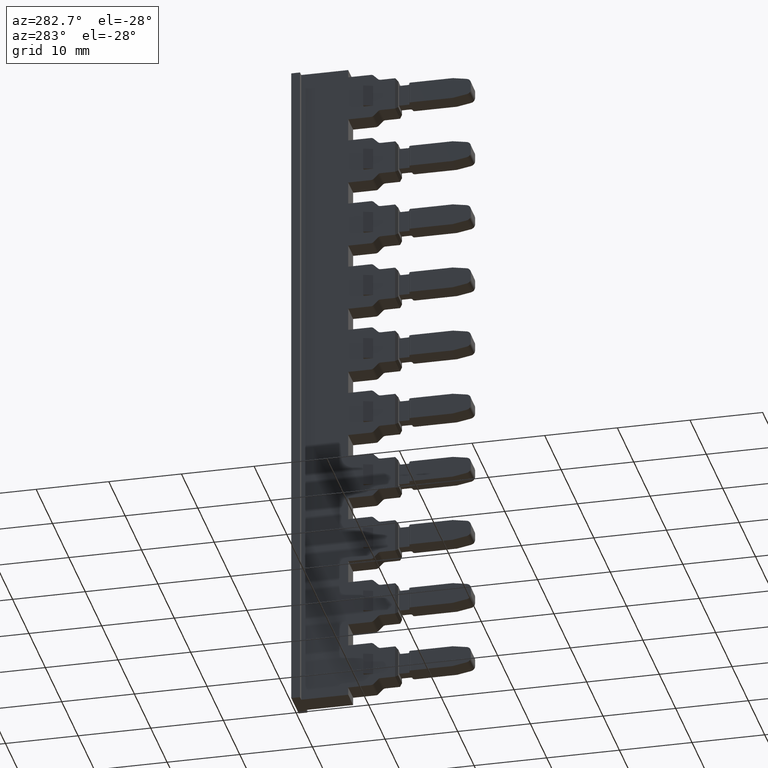
[diagram: clean part render]
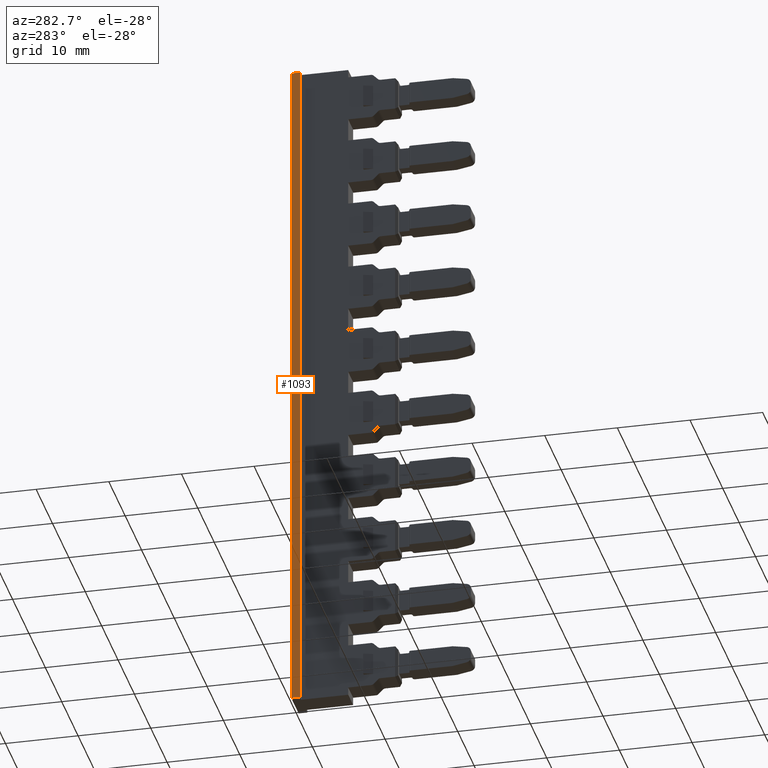
[diagram: same view with one face highlighted and labeled with its STEP entity id]
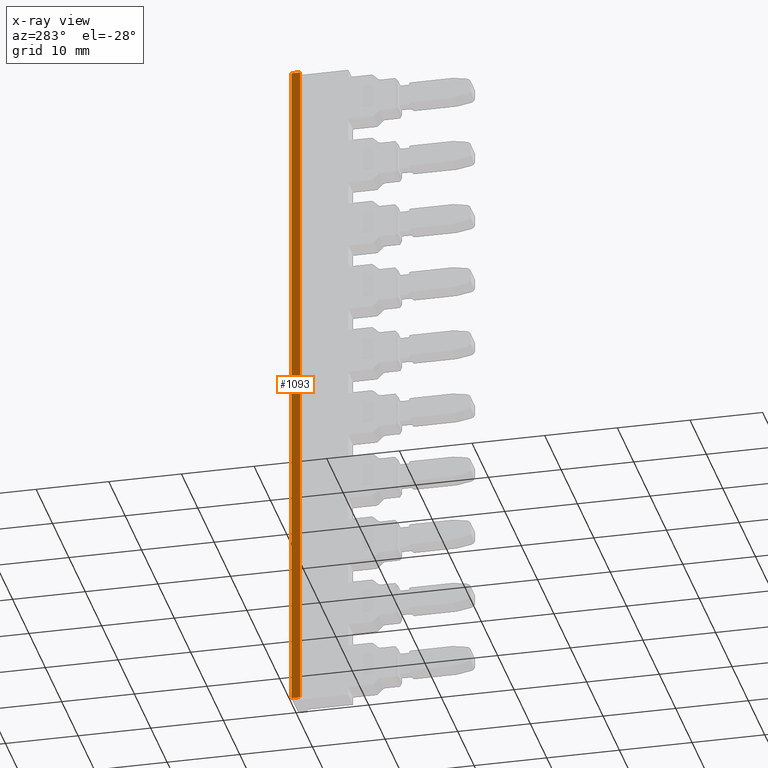
[diagram: x-ray of the same camera — body ghosted, the highlighted face saturated]
A machine part, auxiliary view. The second image highlights one B-rep face of the part: STEP entity #1093.
The next image is the same camera in x-ray: the body ghosted, the highlighted face saturated — about 0% of this face is hidden behind the body in this view.
In plain terms, the highlighted planar face has unit normal (-1, 0, -0).
Its self-contained STEP definition (entity closure, byte-faithful):
#1093 = ADVANCED_FACE ( 'NONE', ( #11222 ), #11273, .T. ) ;
#2723 = ORIENTED_EDGE ( 'NONE', *, *, #4097, .T. ) ;
#2730 = ORIENTED_EDGE ( 'NONE', *, *, #4073, .F. ) ;
#2743 = ORIENTED_EDGE ( 'NONE', *, *, #4148, .F. ) ;
#2775 = ORIENTED_EDGE ( 'NONE', *, *, #4128, .T. ) ;
#4073 = EDGE_CURVE ( 'NONE', #10782, #10750, #5814, .T. ) ;
#4097 = EDGE_CURVE ( 'NONE', #10704, #10460, #5850, .T. ) ;
#4128 = EDGE_CURVE ( 'NONE', #10460, #10750, #5934, .T. ) ;
#4148 = EDGE_CURVE ( 'NONE', #10704, #10782, #6040, .T. ) ;
#5018 = CARTESIAN_POINT ( 'NONE',  ( 108.4779176201148200, 250.3101602475985600, 55.40663662139576200 ) ) ;
#5268 = CARTESIAN_POINT ( 'NONE',  ( 108.4779176201148200, 249.1101602475987400, 55.40663662139575500 ) ) ;
#5278 = CARTESIAN_POINT ( 'NONE',  ( 108.4779176201154600, 250.3101602475990400, -39.59336337860428000 ) ) ;
#5300 = CARTESIAN_POINT ( 'NONE',  ( 108.4779176201154600, 249.1101602475992000, -39.59336337860428000 ) ) ;
#5781 = CARTESIAN_POINT ( 'NONE',  ( 108.4779176201154200, 242.6435672046338300, -39.59336337860428000 ) ) ;
#5782 = DIRECTION ( 'NONE',  ( -1.332647435206765800E-042, 1.000000000000000000, 1.852552877793532400E-028 ) ) ;
#5814 = LINE ( 'NONE', #5781, #9939 ) ;
#5850 = LINE ( 'NONE', #5853, #10021 ) ;
#5853 = CARTESIAN_POINT ( 'NONE',  ( 108.4779176201148200, 249.1101602475987400, 55.40663662139575500 ) ) ;
#5855 = DIRECTION ( 'NONE',  ( 0.0000000000000000000, 1.000000000000000000, 0.0000000000000000000 ) ) ;
#5934 = LINE ( 'NONE', #5937, #9992 ) ;
#5937 = CARTESIAN_POINT ( 'NONE',  ( 108.4779176201148900, 250.3101602475986700, 27.30663662139573600 ) ) ;
#5938 = DIRECTION ( 'NONE',  ( -7.847720069483345500E-029, 2.968510761029626400E-015, -1.000000000000000000 ) ) ;
#6007 = DIRECTION ( 'NONE',  ( 0.0000000000000000000, 1.944757394685668700E-028, -1.000000000000000000 ) ) ;
#6036 = CARTESIAN_POINT ( 'NONE',  ( 108.4779176201148900, 249.1101602475988000, 50.00944813332089500 ) ) ;
#6040 = LINE ( 'NONE', #6036, #10051 ) ;
#6529 = EDGE_LOOP ( 'NONE', ( #2775, #2730, #2743, #2723 ) ) ;
#7468 = AXIS2_PLACEMENT_3D ( 'NONE', #11278, #11291, #11294 ) ;
#9939 = VECTOR ( 'NONE', #5782, 1000.000000000000000 ) ;
#9992 = VECTOR ( 'NONE', #5938, 1000.000000000000000 ) ;
#10021 = VECTOR ( 'NONE', #5855, 1000.000000000000000 ) ;
#10051 = VECTOR ( 'NONE', #6007, 1000.000000000000000 ) ;
#10460 = VERTEX_POINT ( 'NONE', #5018 ) ;
#10704 = VERTEX_POINT ( 'NONE', #5268 ) ;
#10750 = VERTEX_POINT ( 'NONE', #5278 ) ;
#10782 = VERTEX_POINT ( 'NONE', #5300 ) ;
#11222 = FACE_OUTER_BOUND ( 'NONE', #6529, .T. ) ;
#11273 = PLANE ( 'NONE',  #7468 ) ;
#11278 = CARTESIAN_POINT ( 'NONE',  ( 108.4779176201148700, 249.1101602475988000, 50.00944813332089500 ) ) ;
#11291 = DIRECTION ( 'NONE',  ( -1.000000000000000000, 0.0000000000000000000, -7.193572994224081300E-015 ) ) ;
#11294 = DIRECTION ( 'NONE',  ( -7.193572994224081300E-015, 0.0000000000000000000, 1.000000000000000000 ) ) ;